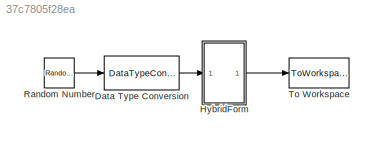
MODEL slx_37c7805f28ea
KIND model
CONFIG AbsTol = auto
CONFIG FixedStep = auto
CONFIG MaxStep = auto
CONFIG MinStep = auto
CONFIG RelTol = 1e-3
CONFIG SampleTimeConstraint = Unconstrained
CONFIG Solver = VariableStepAuto
CONFIG SolverMode = Auto
CONFIG SolverName = VariableStepAuto
CONFIG StartTime = 0.0
CONFIG StopTime = 10.0
BLOCK [DataTypeConversion] Data Type Conversion
  OutDataTypeStr = fixdt(1,8,5)
  RndMeth = Floor
  SaturateOnIntegerOverflow = off
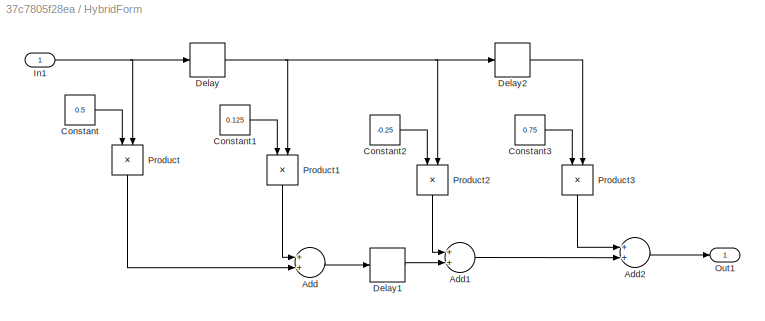
BLOCK [SubSystem] HybridForm
  Ports = [1, 1]
  RequestExecContextInheritance = off
  Variant = off
BLOCK [Sum] HybridForm/Add
  InputSameDT = off
  OutDataTypeStr = fixdt(1,8,6)
  Ports = [2, 1]
  SaturateOnIntegerOverflow = off
BLOCK [Sum] HybridForm/Add1
  InputSameDT = off
  OutDataTypeStr = fixdt(1,8,6)
  Ports = [2, 1]
  SaturateOnIntegerOverflow = off
BLOCK [Sum] HybridForm/Add2
  InputSameDT = off
  OutDataTypeStr = fixdt(1,8,5)
  Ports = [2, 1]
  SaturateOnIntegerOverflow = off
BLOCK [Constant] HybridForm/Constant
  OutDataTypeStr = fixdt(0,1,1)
  Value = 0.5
BLOCK [Constant] HybridForm/Constant1
  OutDataTypeStr = fixdt(0,3,3)
  Value = 0.125
BLOCK [Constant] HybridForm/Constant2
  OutDataTypeStr = fixdt(1,3,2)
  Value = -0.25
BLOCK [Constant] HybridForm/Constant3
  OutDataTypeStr = fixdt(0,2,2)
  Value = 0.75
BLOCK [Delay] HybridForm/Delay
  DelayLength = 1
  InputPortMap = u0
  Ports = [1, 1]
BLOCK [Delay] HybridForm/Delay1
  DelayLength = 1
  InputPortMap = u0
  Ports = [1, 1]
BLOCK [Delay] HybridForm/Delay2
  DelayLength = 1
  InputPortMap = u0
  Ports = [1, 1]
BLOCK [Inport] HybridForm/In1
  IconDisplay = Port number
BLOCK [Outport] HybridForm/Out1
  IconDisplay = Port number
BLOCK [Product] HybridForm/Product
  InputSameDT = off
  OutDataTypeStr = fixdt(1,8,6)
  Ports = [2, 1]
  RndMeth = Floor
  SaturateOnIntegerOverflow = off
BLOCK [Product] HybridForm/Product1
  InputSameDT = off
  OutDataTypeStr = fixdt(1,8,7)
  Ports = [2, 1]
  RndMeth = Floor
  SaturateOnIntegerOverflow = off
BLOCK [Product] HybridForm/Product2
  InputSameDT = off
  OutDataTypeStr = fixdt(1,8,7)
  Ports = [2, 1]
  RndMeth = Floor
  SaturateOnIntegerOverflow = off
BLOCK [Product] HybridForm/Product3
  InputSameDT = off
  OutDataTypeStr = fixdt(1,8,6)
  Ports = [2, 1]
  RndMeth = Floor
  SaturateOnIntegerOverflow = off
BLOCK [RandomNumber] Random Number
  SampleTime = 0.1
BLOCK [ToWorkspace] To Workspace
  FixptAsFi = on
  MaxDataPoints = inf
  Ports = [1]
  SampleTime = -1
  Save2DSignal = 3-D array (concatenate along third dimension)
  SaveFormat = Timeseries
  VariableName = Sout_fixed
LINE Data Type Conversion:1 -> HybridForm:1
LINE HybridForm/Add1:1 -> HybridForm/Add2:2
LINE HybridForm/Add2:1 -> HybridForm/Out1:1
LINE HybridForm/Add:1 -> HybridForm/Delay1:1
LINE HybridForm/Constant1:1 -> HybridForm/Product1:1
LINE HybridForm/Constant2:1 -> HybridForm/Product2:1
LINE HybridForm/Constant3:1 -> HybridForm/Product3:1
LINE HybridForm/Constant:1 -> HybridForm/Product:1
LINE HybridForm/Delay1:1 -> HybridForm/Add1:2
LINE HybridForm/Delay2:1 -> HybridForm/Product3:2
NET HybridForm/Delay:1 -> HybridForm/Delay2:1, HybridForm/Product1:2, HybridForm/Product2:2
NET HybridForm/In1:1 -> HybridForm/Delay:1, HybridForm/Product:2
LINE HybridForm/Product1:1 -> HybridForm/Add:1
LINE HybridForm/Product2:1 -> HybridForm/Add1:1
LINE HybridForm/Product3:1 -> HybridForm/Add2:1
LINE HybridForm/Product:1 -> HybridForm/Add:2
LINE HybridForm:1 -> To Workspace:1
LINE Random Number:1 -> Data Type Conversion:1
note: NET lines group one-source signal fan-out (src -> all destinations, sorted); 1:1 wires keep LINE
